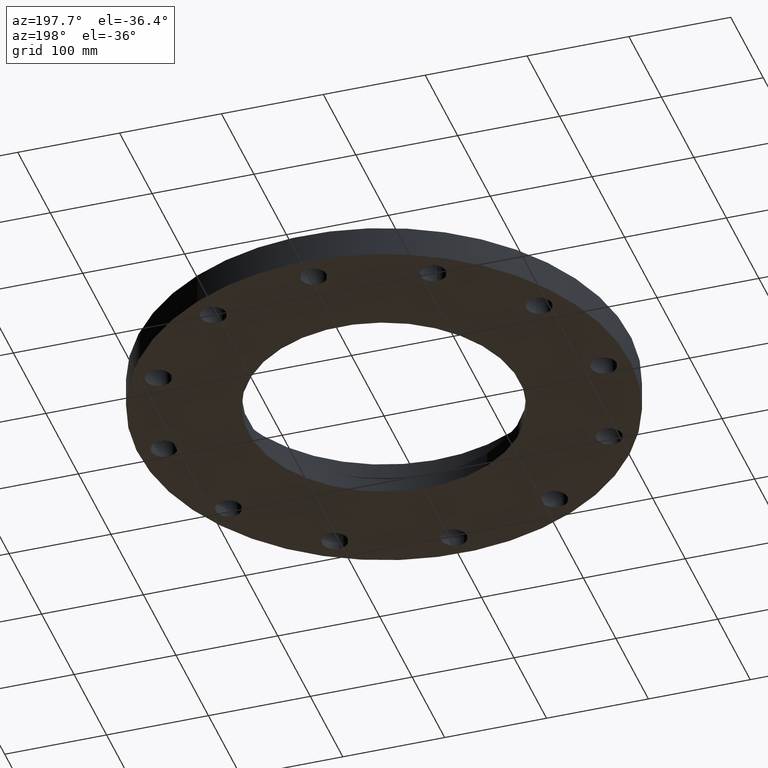
[diagram: clean part render]
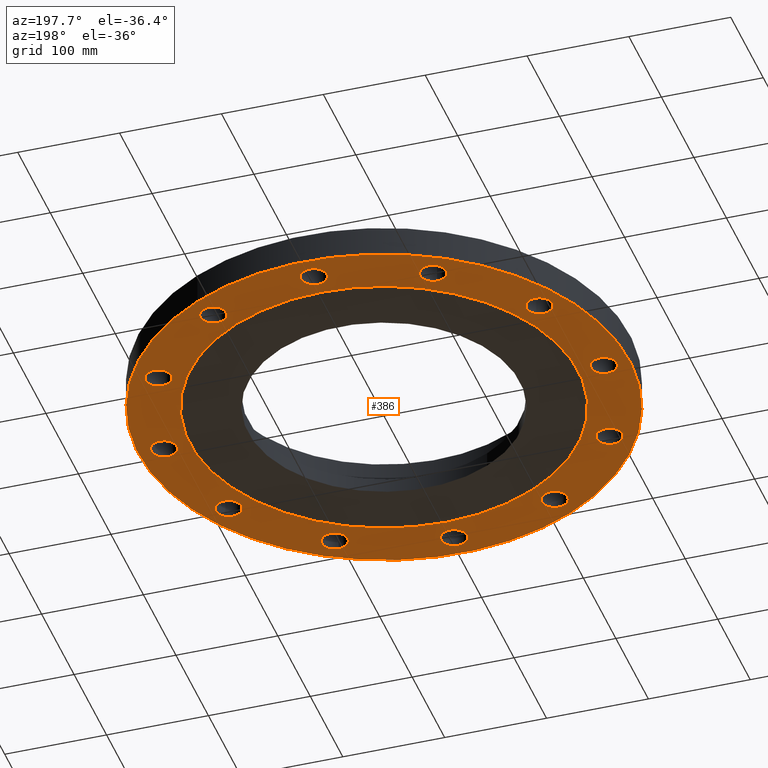
[diagram: same view with one face highlighted and labeled with its STEP entity id]
A machine part, auxiliary view. The second image highlights one B-rep face of the part: STEP entity #386.
In plain terms, the highlighted planar face has unit normal (0, 0, -1).
Its self-contained STEP definition (entity closure, byte-faithful):
#123=AXIS2_PLACEMENT_3D('Plane Axis2P3D',#120,#121,#122) ;
#127=AXIS2_PLACEMENT_3D('Circle Axis2P3D',#125,#126,$) ;
#136=AXIS2_PLACEMENT_3D('Circle Axis2P3D',#134,#135,$) ;
#150=AXIS2_PLACEMENT_3D('Circle Axis2P3D',#148,#149,$) ;
#159=AXIS2_PLACEMENT_3D('Circle Axis2P3D',#157,#158,$) ;
#168=AXIS2_PLACEMENT_3D('Circle Axis2P3D',#166,#167,$) ;
#177=AXIS2_PLACEMENT_3D('Circle Axis2P3D',#175,#176,$) ;
#190=AXIS2_PLACEMENT_3D('Circle Axis2P3D',#188,#189,$) ;
#199=AXIS2_PLACEMENT_3D('Circle Axis2P3D',#197,#198,$) ;
#208=AXIS2_PLACEMENT_3D('Circle Axis2P3D',#206,#207,$) ;
#217=AXIS2_PLACEMENT_3D('Circle Axis2P3D',#215,#216,$) ;
#226=AXIS2_PLACEMENT_3D('Circle Axis2P3D',#224,#225,$) ;
#235=AXIS2_PLACEMENT_3D('Circle Axis2P3D',#233,#234,$) ;
#244=AXIS2_PLACEMENT_3D('Circle Axis2P3D',#242,#243,$) ;
#253=AXIS2_PLACEMENT_3D('Circle Axis2P3D',#251,#252,$) ;
#262=AXIS2_PLACEMENT_3D('Circle Axis2P3D',#260,#261,$) ;
#271=AXIS2_PLACEMENT_3D('Circle Axis2P3D',#269,#270,$) ;
#280=AXIS2_PLACEMENT_3D('Circle Axis2P3D',#278,#279,$) ;
#289=AXIS2_PLACEMENT_3D('Circle Axis2P3D',#287,#288,$) ;
#298=AXIS2_PLACEMENT_3D('Circle Axis2P3D',#296,#297,$) ;
#307=AXIS2_PLACEMENT_3D('Circle Axis2P3D',#305,#306,$) ;
#316=AXIS2_PLACEMENT_3D('Circle Axis2P3D',#314,#315,$) ;
#325=AXIS2_PLACEMENT_3D('Circle Axis2P3D',#323,#324,$) ;
#334=AXIS2_PLACEMENT_3D('Circle Axis2P3D',#332,#333,$) ;
#343=AXIS2_PLACEMENT_3D('Circle Axis2P3D',#341,#342,$) ;
#352=AXIS2_PLACEMENT_3D('Circle Axis2P3D',#350,#351,$) ;
#361=AXIS2_PLACEMENT_3D('Circle Axis2P3D',#359,#360,$) ;
#370=AXIS2_PLACEMENT_3D('Circle Axis2P3D',#368,#369,$) ;
#379=AXIS2_PLACEMENT_3D('Circle Axis2P3D',#377,#378,$) ;
#120=CARTESIAN_POINT('Axis2P3D Location',(0.,5.25000000002,0.)) ;
#125=CARTESIAN_POINT('Axis2P3D Location',(0.,0.,0.)) ;
#129=CARTESIAN_POINT('Vertex',(-3.59569153955,-6.5818692142,0.)) ;
#131=CARTESIAN_POINT('Vertex',(3.59569153955,6.5818692142,0.)) ;
#134=CARTESIAN_POINT('Axis2P3D Location',(0.,0.,0.)) ;
#148=CARTESIAN_POINT('Axis2P3D Location',(0.,0.,0.)) ;
#152=CARTESIAN_POINT('Vertex',(-4.55454261676,-8.33703433799,1.1189649382E-015)) ;
#154=CARTESIAN_POINT('Vertex',(4.55454261676,8.33703433799,1.1189649382E-015)) ;
#157=CARTESIAN_POINT('Axis2P3D Location',(0.,0.,0.)) ;
#166=CARTESIAN_POINT('Axis2P3D Location',(8.50000000003,-1.1189649382E-015,0.)) ;
#170=CARTESIAN_POINT('Vertex',(8.93879128098,-0.239712769303,0.)) ;
#172=CARTESIAN_POINT('Vertex',(8.06120871909,0.239712769303,0.)) ;
#175=CARTESIAN_POINT('Axis2P3D Location',(8.50000000003,0.,0.)) ;
#188=CARTESIAN_POINT('Axis2P3D Location',(7.3612159322,-4.25000000002,0.)) ;
#192=CARTESIAN_POINT('Vertex',(7.10106792059,-3.82300701172,0.)) ;
#194=CARTESIAN_POINT('Vertex',(7.6213639438,-4.67699298832,0.)) ;
#197=CARTESIAN_POINT('Axis2P3D Location',(7.3612159322,-4.25000000002,0.)) ;
#206=CARTESIAN_POINT('Axis2P3D Location',(4.25000000002,-7.3612159322,0.)) ;
#210=CARTESIAN_POINT('Vertex',(4.23820170737,-6.86135515129,0.)) ;
#212=CARTESIAN_POINT('Vertex',(4.26179829266,-7.86107671311,0.)) ;
#215=CARTESIAN_POINT('Axis2P3D Location',(4.25000000002,-7.3612159322,0.)) ;
#224=CARTESIAN_POINT('Axis2P3D Location',(5.59482469102E-016,-8.50000000003,0.)) ;
#228=CARTESIAN_POINT('Vertex',(0.239712769303,-8.06120871909,0.)) ;
#230=CARTESIAN_POINT('Vertex',(-0.239712769303,-8.93879128098,0.)) ;
#233=CARTESIAN_POINT('Axis2P3D Location',(-4.19611851827E-016,-8.50000000003,0.)) ;
#242=CARTESIAN_POINT('Axis2P3D Location',(-4.25000000002,-7.3612159322,0.)) ;
#246=CARTESIAN_POINT('Vertex',(-3.82300701172,-7.10106792059,0.)) ;
#248=CARTESIAN_POINT('Vertex',(-4.67699298832,-7.6213639438,-1.1189649382E-015)) ;
#251=CARTESIAN_POINT('Axis2P3D Location',(-4.25000000002,-7.3612159322,0.)) ;
#260=CARTESIAN_POINT('Axis2P3D Location',(-7.3612159322,-4.25000000002,0.)) ;
#264=CARTESIAN_POINT('Vertex',(-6.86135515129,-4.23820170737,0.)) ;
#266=CARTESIAN_POINT('Vertex',(-7.86107671311,-4.26179829266,0.)) ;
#269=CARTESIAN_POINT('Axis2P3D Location',(-7.3612159322,-4.25000000002,0.)) ;
#278=CARTESIAN_POINT('Axis2P3D Location',(-8.50000000003,-1.1189649382E-015,0.)) ;
#282=CARTESIAN_POINT('Vertex',(-8.06120871909,-0.239712769303,0.)) ;
#284=CARTESIAN_POINT('Vertex',(-8.93879128098,0.239712769303,0.)) ;
#287=CARTESIAN_POINT('Axis2P3D Location',(-8.50000000003,-1.1189649382E-015,0.)) ;
#296=CARTESIAN_POINT('Axis2P3D Location',(-7.3612159322,4.25000000002,0.)) ;
#300=CARTESIAN_POINT('Vertex',(-7.10106792059,3.82300701172,0.)) ;
#302=CARTESIAN_POINT('Vertex',(-7.6213639438,4.67699298832,0.)) ;
#305=CARTESIAN_POINT('Axis2P3D Location',(-7.3612159322,4.25000000002,0.)) ;
#314=CARTESIAN_POINT('Axis2P3D Location',(-4.25000000002,7.3612159322,0.)) ;
#318=CARTESIAN_POINT('Vertex',(-4.23820170737,6.86135515129,0.)) ;
#320=CARTESIAN_POINT('Vertex',(-4.26179829266,7.86107671311,0.)) ;
#323=CARTESIAN_POINT('Axis2P3D Location',(-4.25000000002,7.3612159322,0.)) ;
#332=CARTESIAN_POINT('Axis2P3D Location',(-4.19611851827E-016,8.50000000003,0.)) ;
#336=CARTESIAN_POINT('Vertex',(-0.239712769303,8.06120871909,0.)) ;
#338=CARTESIAN_POINT('Vertex',(0.239712769303,8.93879128098,0.)) ;
#341=CARTESIAN_POINT('Axis2P3D Location',(2.09805925913E-016,8.50000000003,0.)) ;
#350=CARTESIAN_POINT('Axis2P3D Location',(4.25000000002,7.3612159322,0.)) ;
#354=CARTESIAN_POINT('Vertex',(3.82300701172,7.10106792059,0.)) ;
#356=CARTESIAN_POINT('Vertex',(4.67699298832,7.6213639438,0.)) ;
#359=CARTESIAN_POINT('Axis2P3D Location',(4.25000000002,7.3612159322,0.)) ;
#368=CARTESIAN_POINT('Axis2P3D Location',(7.3612159322,4.25000000002,0.)) ;
#372=CARTESIAN_POINT('Vertex',(6.86135515129,4.23820170737,0.)) ;
#374=CARTESIAN_POINT('Vertex',(7.86107671311,4.26179829266,0.)) ;
#377=CARTESIAN_POINT('Axis2P3D Location',(7.3612159322,4.25000000002,0.)) ;
#121=DIRECTION('Axis2P3D Direction',(0.,0.,-0.0393700787402)) ;
#122=DIRECTION('Axis2P3D XDirection',(0.0393700787402,0.,0.)) ;
#126=DIRECTION('Axis2P3D Direction',(0.,0.,-0.0393700787402)) ;
#135=DIRECTION('Axis2P3D Direction',(0.,0.,-0.0393700787402)) ;
#149=DIRECTION('Axis2P3D Direction',(0.,0.,-0.0393700787402)) ;
#158=DIRECTION('Axis2P3D Direction',(0.,0.,-0.0393700787402)) ;
#167=DIRECTION('Axis2P3D Direction',(0.,0.,-0.0393700787402)) ;
#176=DIRECTION('Axis2P3D Direction',(0.,0.,-0.0393700787402)) ;
#189=DIRECTION('Axis2P3D Direction',(0.,0.,-0.0393700787402)) ;
#198=DIRECTION('Axis2P3D Direction',(0.,0.,-0.0393700787402)) ;
#207=DIRECTION('Axis2P3D Direction',(0.,0.,-0.0393700787402)) ;
#216=DIRECTION('Axis2P3D Direction',(0.,0.,-0.0393700787402)) ;
#225=DIRECTION('Axis2P3D Direction',(0.,0.,-0.0393700787402)) ;
#234=DIRECTION('Axis2P3D Direction',(0.,0.,-0.0393700787402)) ;
#243=DIRECTION('Axis2P3D Direction',(0.,0.,-0.0393700787402)) ;
#252=DIRECTION('Axis2P3D Direction',(0.,0.,-0.0393700787402)) ;
#261=DIRECTION('Axis2P3D Direction',(0.,0.,-0.0393700787402)) ;
#270=DIRECTION('Axis2P3D Direction',(0.,0.,-0.0393700787402)) ;
#279=DIRECTION('Axis2P3D Direction',(0.,0.,-0.0393700787402)) ;
#288=DIRECTION('Axis2P3D Direction',(0.,0.,-0.0393700787402)) ;
#297=DIRECTION('Axis2P3D Direction',(0.,0.,-0.0393700787402)) ;
#306=DIRECTION('Axis2P3D Direction',(0.,0.,-0.0393700787402)) ;
#315=DIRECTION('Axis2P3D Direction',(0.,0.,-0.0393700787402)) ;
#324=DIRECTION('Axis2P3D Direction',(0.,0.,-0.0393700787402)) ;
#333=DIRECTION('Axis2P3D Direction',(0.,0.,-0.0393700787402)) ;
#342=DIRECTION('Axis2P3D Direction',(0.,0.,-0.0393700787402)) ;
#351=DIRECTION('Axis2P3D Direction',(0.,0.,-0.0393700787402)) ;
#360=DIRECTION('Axis2P3D Direction',(0.,0.,-0.0393700787402)) ;
#369=DIRECTION('Axis2P3D Direction',(0.,0.,-0.0393700787402)) ;
#378=DIRECTION('Axis2P3D Direction',(0.,0.,-0.0393700787402)) ;
#163=ORIENTED_EDGE('',*,*,#156,.T.) ;
#164=ORIENTED_EDGE('',*,*,#161,.T.) ;
#181=ORIENTED_EDGE('',*,*,#174,.F.) ;
#182=ORIENTED_EDGE('',*,*,#179,.F.) ;
#185=ORIENTED_EDGE('',*,*,#138,.F.) ;
#186=ORIENTED_EDGE('',*,*,#133,.F.) ;
#203=ORIENTED_EDGE('',*,*,#196,.F.) ;
#204=ORIENTED_EDGE('',*,*,#201,.F.) ;
#221=ORIENTED_EDGE('',*,*,#214,.F.) ;
#222=ORIENTED_EDGE('',*,*,#219,.F.) ;
#239=ORIENTED_EDGE('',*,*,#232,.F.) ;
#240=ORIENTED_EDGE('',*,*,#237,.F.) ;
#257=ORIENTED_EDGE('',*,*,#250,.F.) ;
#258=ORIENTED_EDGE('',*,*,#255,.F.) ;
#275=ORIENTED_EDGE('',*,*,#268,.F.) ;
#276=ORIENTED_EDGE('',*,*,#273,.F.) ;
#293=ORIENTED_EDGE('',*,*,#286,.F.) ;
#294=ORIENTED_EDGE('',*,*,#291,.F.) ;
#311=ORIENTED_EDGE('',*,*,#304,.F.) ;
#312=ORIENTED_EDGE('',*,*,#309,.F.) ;
#329=ORIENTED_EDGE('',*,*,#322,.F.) ;
#330=ORIENTED_EDGE('',*,*,#327,.F.) ;
#347=ORIENTED_EDGE('',*,*,#340,.F.) ;
#348=ORIENTED_EDGE('',*,*,#345,.F.) ;
#365=ORIENTED_EDGE('',*,*,#358,.F.) ;
#366=ORIENTED_EDGE('',*,*,#363,.F.) ;
#383=ORIENTED_EDGE('',*,*,#376,.F.) ;
#384=ORIENTED_EDGE('',*,*,#381,.F.) ;
#183=FACE_BOUND('',#180,.T.) ;
#187=FACE_BOUND('',#184,.T.) ;
#205=FACE_BOUND('',#202,.T.) ;
#223=FACE_BOUND('',#220,.T.) ;
#241=FACE_BOUND('',#238,.T.) ;
#259=FACE_BOUND('',#256,.T.) ;
#277=FACE_BOUND('',#274,.T.) ;
#295=FACE_BOUND('',#292,.T.) ;
#313=FACE_BOUND('',#310,.T.) ;
#331=FACE_BOUND('',#328,.T.) ;
#349=FACE_BOUND('',#346,.T.) ;
#367=FACE_BOUND('',#364,.T.) ;
#385=FACE_BOUND('',#382,.T.) ;
#386=ADVANCED_FACE('PartBody',(#165,#183,#187,#205,#223,#241,#259,#277,#295,#313,#331,#349,#367,#385),#124,.T.) ;
#128=CIRCLE('generated circle',#127,7.50000000003) ;
#137=CIRCLE('generated circle',#136,7.50000000003) ;
#151=CIRCLE('generated circle',#150,9.50000000004) ;
#160=CIRCLE('generated circle',#159,9.50000000004) ;
#169=CIRCLE('generated circle',#168,0.500000000002) ;
#178=CIRCLE('generated circle',#177,0.500000000002) ;
#191=CIRCLE('generated circle',#190,0.500000000002) ;
#200=CIRCLE('generated circle',#199,0.500000000002) ;
#209=CIRCLE('generated circle',#208,0.500000000002) ;
#218=CIRCLE('generated circle',#217,0.500000000002) ;
#227=CIRCLE('generated circle',#226,0.500000000002) ;
#236=CIRCLE('generated circle',#235,0.500000000002) ;
#245=CIRCLE('generated circle',#244,0.500000000002) ;
#254=CIRCLE('generated circle',#253,0.500000000002) ;
#263=CIRCLE('generated circle',#262,0.500000000002) ;
#272=CIRCLE('generated circle',#271,0.500000000002) ;
#281=CIRCLE('generated circle',#280,0.500000000002) ;
#290=CIRCLE('generated circle',#289,0.500000000002) ;
#299=CIRCLE('generated circle',#298,0.500000000002) ;
#308=CIRCLE('generated circle',#307,0.500000000002) ;
#317=CIRCLE('generated circle',#316,0.500000000002) ;
#326=CIRCLE('generated circle',#325,0.500000000002) ;
#335=CIRCLE('generated circle',#334,0.500000000002) ;
#344=CIRCLE('generated circle',#343,0.500000000002) ;
#353=CIRCLE('generated circle',#352,0.500000000002) ;
#362=CIRCLE('generated circle',#361,0.500000000002) ;
#371=CIRCLE('generated circle',#370,0.500000000002) ;
#380=CIRCLE('generated circle',#379,0.500000000002) ;
#133=EDGE_CURVE('',#130,#132,#128,.T.) ;
#138=EDGE_CURVE('',#132,#130,#137,.T.) ;
#156=EDGE_CURVE('',#153,#155,#151,.T.) ;
#161=EDGE_CURVE('',#155,#153,#160,.T.) ;
#174=EDGE_CURVE('',#171,#173,#169,.T.) ;
#179=EDGE_CURVE('',#173,#171,#178,.T.) ;
#196=EDGE_CURVE('',#193,#195,#191,.T.) ;
#201=EDGE_CURVE('',#195,#193,#200,.T.) ;
#214=EDGE_CURVE('',#211,#213,#209,.T.) ;
#219=EDGE_CURVE('',#213,#211,#218,.T.) ;
#232=EDGE_CURVE('',#229,#231,#227,.T.) ;
#237=EDGE_CURVE('',#231,#229,#236,.T.) ;
#250=EDGE_CURVE('',#247,#249,#245,.T.) ;
#255=EDGE_CURVE('',#249,#247,#254,.T.) ;
#268=EDGE_CURVE('',#265,#267,#263,.T.) ;
#273=EDGE_CURVE('',#267,#265,#272,.T.) ;
#286=EDGE_CURVE('',#283,#285,#281,.T.) ;
#291=EDGE_CURVE('',#285,#283,#290,.T.) ;
#304=EDGE_CURVE('',#301,#303,#299,.T.) ;
#309=EDGE_CURVE('',#303,#301,#308,.T.) ;
#322=EDGE_CURVE('',#319,#321,#317,.T.) ;
#327=EDGE_CURVE('',#321,#319,#326,.T.) ;
#340=EDGE_CURVE('',#337,#339,#335,.T.) ;
#345=EDGE_CURVE('',#339,#337,#344,.T.) ;
#358=EDGE_CURVE('',#355,#357,#353,.T.) ;
#363=EDGE_CURVE('',#357,#355,#362,.T.) ;
#376=EDGE_CURVE('',#373,#375,#371,.T.) ;
#381=EDGE_CURVE('',#375,#373,#380,.T.) ;
#162=EDGE_LOOP('',(#163,#164)) ;
#180=EDGE_LOOP('',(#181,#182)) ;
#184=EDGE_LOOP('',(#185,#186)) ;
#202=EDGE_LOOP('',(#203,#204)) ;
#220=EDGE_LOOP('',(#221,#222)) ;
#238=EDGE_LOOP('',(#239,#240)) ;
#256=EDGE_LOOP('',(#257,#258)) ;
#274=EDGE_LOOP('',(#275,#276)) ;
#292=EDGE_LOOP('',(#293,#294)) ;
#310=EDGE_LOOP('',(#311,#312)) ;
#328=EDGE_LOOP('',(#329,#330)) ;
#346=EDGE_LOOP('',(#347,#348)) ;
#364=EDGE_LOOP('',(#365,#366)) ;
#382=EDGE_LOOP('',(#383,#384)) ;
#165=FACE_OUTER_BOUND('',#162,.T.) ;
#124=PLANE('',#123) ;
#130=VERTEX_POINT('',#129) ;
#132=VERTEX_POINT('',#131) ;
#153=VERTEX_POINT('',#152) ;
#155=VERTEX_POINT('',#154) ;
#171=VERTEX_POINT('',#170) ;
#173=VERTEX_POINT('',#172) ;
#193=VERTEX_POINT('',#192) ;
#195=VERTEX_POINT('',#194) ;
#211=VERTEX_POINT('',#210) ;
#213=VERTEX_POINT('',#212) ;
#229=VERTEX_POINT('',#228) ;
#231=VERTEX_POINT('',#230) ;
#247=VERTEX_POINT('',#246) ;
#249=VERTEX_POINT('',#248) ;
#265=VERTEX_POINT('',#264) ;
#267=VERTEX_POINT('',#266) ;
#283=VERTEX_POINT('',#282) ;
#285=VERTEX_POINT('',#284) ;
#301=VERTEX_POINT('',#300) ;
#303=VERTEX_POINT('',#302) ;
#319=VERTEX_POINT('',#318) ;
#321=VERTEX_POINT('',#320) ;
#337=VERTEX_POINT('',#336) ;
#339=VERTEX_POINT('',#338) ;
#355=VERTEX_POINT('',#354) ;
#357=VERTEX_POINT('',#356) ;
#373=VERTEX_POINT('',#372) ;
#375=VERTEX_POINT('',#374) ;